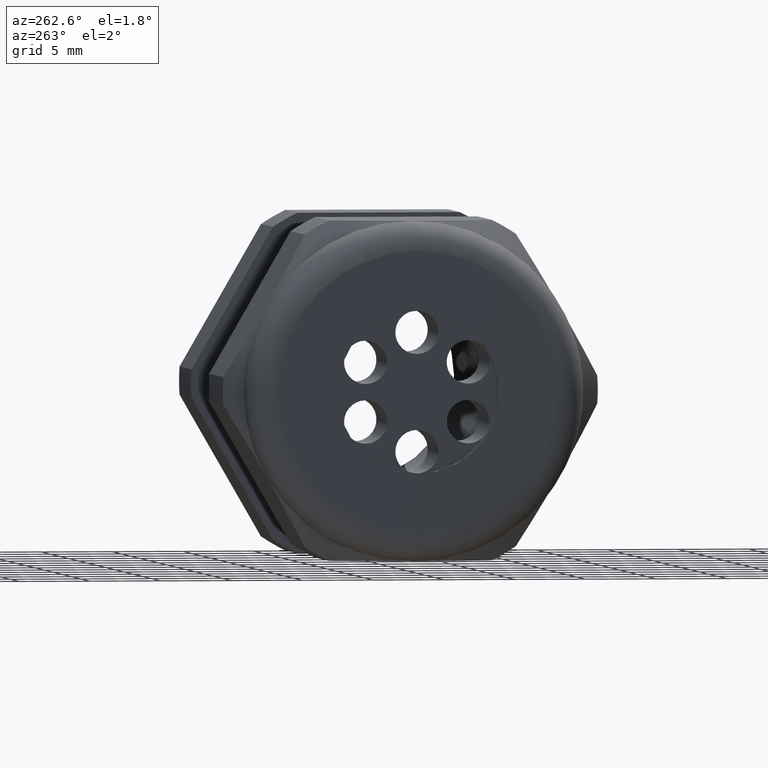
[diagram: clean part render]
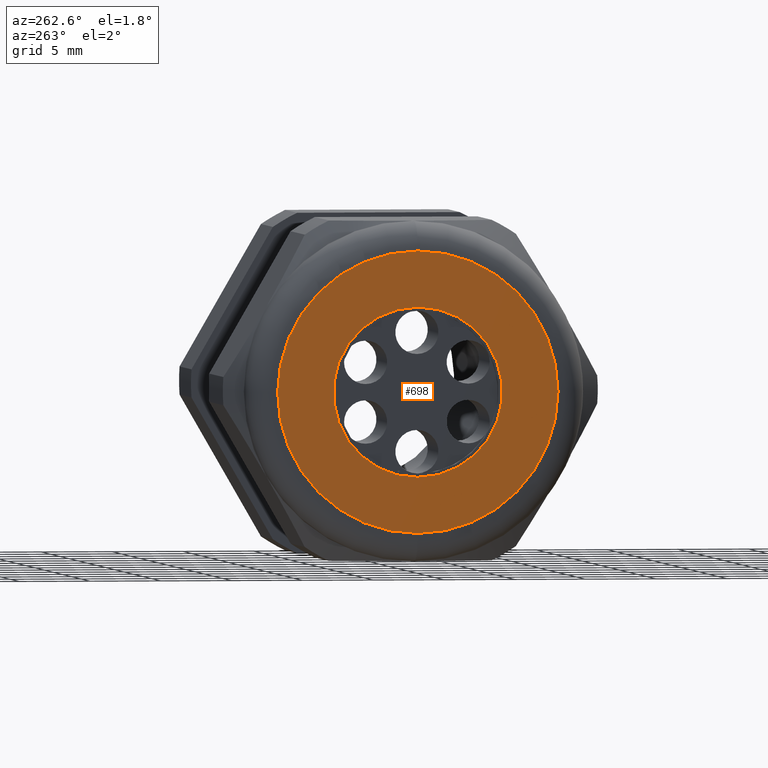
[diagram: same view with one face highlighted and labeled with its STEP entity id]
A machine part, auxiliary view. The second image highlights one B-rep face of the part: STEP entity #698.
In plain terms, the highlighted planar face has unit normal (-1, 0, 0).
Its self-contained STEP definition (entity closure, byte-faithful):
#152 = VERTEX_POINT ( 'NONE', #2142 ) ;
#154 = EDGE_CURVE ( 'NONE', #155, #152, #2141, .T. ) ;
#155 = VERTEX_POINT ( 'NONE', #2136 ) ;
#186 = VERTEX_POINT ( 'NONE', #2191 ) ;
#213 = EDGE_CURVE ( 'NONE', #214, #186, #2270, .T. ) ;
#214 = VERTEX_POINT ( 'NONE', #2261 ) ;
#698 = ADVANCED_FACE ( 'NONE', ( #3270, #3269 ), #3268, .T. ) ;
#699 = EDGE_LOOP ( 'NONE', ( #700, #701 ) ) ;
#700 = ORIENTED_EDGE ( 'NONE', *, *, #154, .T. ) ;
#701 = ORIENTED_EDGE ( 'NONE', *, *, #702, .T. ) ;
#702 = EDGE_CURVE ( 'NONE', #152, #155, #3263, .T. ) ;
#703 = EDGE_LOOP ( 'NONE', ( #756, #757 ) ) ;
#756 = ORIENTED_EDGE ( 'NONE', *, *, #773, .T. ) ;
#757 = ORIENTED_EDGE ( 'NONE', *, *, #213, .T. ) ;
#773 = EDGE_CURVE ( 'NONE', #186, #214, #3387, .T. ) ;
#2136 = CARTESIAN_POINT ( 'NONE',  ( -1.409999999999999900, 0.0000000000000000000, 0.3899999999999999600 ) ) ;
#2137 = DIRECTION ( 'NONE',  ( 0.0000000000000000000, 0.0000000000000000000, 1.000000000000000000 ) ) ;
#2138 = DIRECTION ( 'NONE',  ( -1.000000000000000000, 0.0000000000000000000, 0.0000000000000000000 ) ) ;
#2139 = CARTESIAN_POINT ( 'NONE',  ( -1.409999999999999900, 0.0000000000000000000, 0.0000000000000000000 ) ) ;
#2140 = AXIS2_PLACEMENT_3D ( 'NONE', #2139, #2138, #2137 ) ;
#2141 = CIRCLE ( 'NONE', #2140, 0.3899999999999999600 ) ;
#2142 = CARTESIAN_POINT ( 'NONE',  ( -1.409999999999999900, 5.265981236333617600E-017, -0.3899999999999999600 ) ) ;
#2191 = CARTESIAN_POINT ( 'NONE',  ( -1.409999999999999900, 0.0000000000000000000, -0.2349999999999999900 ) ) ;
#2261 = CARTESIAN_POINT ( 'NONE',  ( -1.409999999999999900, 2.877919977996279800E-017, 0.2349999999999999900 ) ) ;
#2262 = DIRECTION ( 'NONE',  ( 0.0000000000000000000, 0.0000000000000000000, -1.000000000000000000 ) ) ;
#2263 = DIRECTION ( 'NONE',  ( 1.000000000000000000, 0.0000000000000000000, 0.0000000000000000000 ) ) ;
#2264 = CARTESIAN_POINT ( 'NONE',  ( -1.409999999999999900, 0.0000000000000000000, 0.0000000000000000000 ) ) ;
#2265 = AXIS2_PLACEMENT_3D ( 'NONE', #2264, #2263, #2262 ) ;
#2270 = CIRCLE ( 'NONE', #2265, 0.2349999999999999900 ) ;
#3259 = DIRECTION ( 'NONE',  ( 0.0000000000000000000, 0.0000000000000000000, 1.000000000000000000 ) ) ;
#3260 = DIRECTION ( 'NONE',  ( -1.000000000000000000, 0.0000000000000000000, 0.0000000000000000000 ) ) ;
#3261 = CARTESIAN_POINT ( 'NONE',  ( -1.409999999999999900, 0.0000000000000000000, 0.0000000000000000000 ) ) ;
#3262 = AXIS2_PLACEMENT_3D ( 'NONE', #3261, #3260, #3259 ) ;
#3263 = CIRCLE ( 'NONE', #3262, 0.3899999999999999600 ) ;
#3264 = DIRECTION ( 'NONE',  ( 0.0000000000000000000, 0.0000000000000000000, 1.000000000000000000 ) ) ;
#3265 = DIRECTION ( 'NONE',  ( -1.000000000000000000, 0.0000000000000000000, 0.0000000000000000000 ) ) ;
#3266 = CARTESIAN_POINT ( 'NONE',  ( -1.409999999999999900, 0.4699999999999999200, 0.0000000000000000000 ) ) ;
#3267 = AXIS2_PLACEMENT_3D ( 'NONE', #3266, #3265, #3264 ) ;
#3268 = PLANE ( 'NONE',  #3267 ) ;
#3269 = FACE_BOUND ( 'NONE', #703, .T. ) ;
#3270 = FACE_OUTER_BOUND ( 'NONE', #699, .T. ) ;
#3384 = DIRECTION ( 'NONE',  ( 0.0000000000000000000, 0.0000000000000000000, -1.000000000000000000 ) ) ;
#3385 = DIRECTION ( 'NONE',  ( 1.000000000000000000, 0.0000000000000000000, 0.0000000000000000000 ) ) ;
#3386 = AXIS2_PLACEMENT_3D ( 'NONE', #3392, #3385, #3384 ) ;
#3387 = CIRCLE ( 'NONE', #3386, 0.2349999999999999900 ) ;
#3392 = CARTESIAN_POINT ( 'NONE',  ( -1.409999999999999900, 0.0000000000000000000, 0.0000000000000000000 ) ) ;